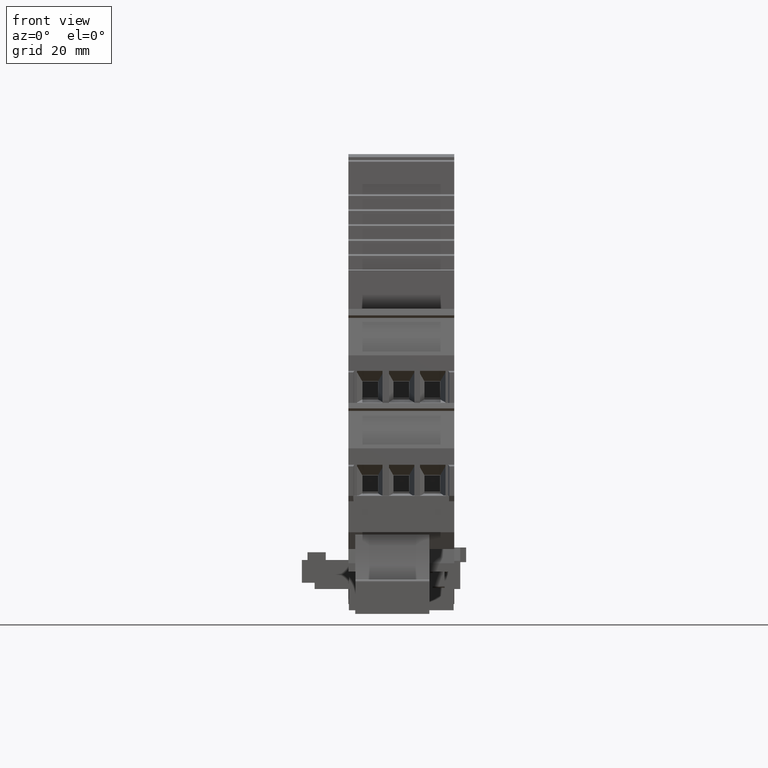
[diagram: clean part render]
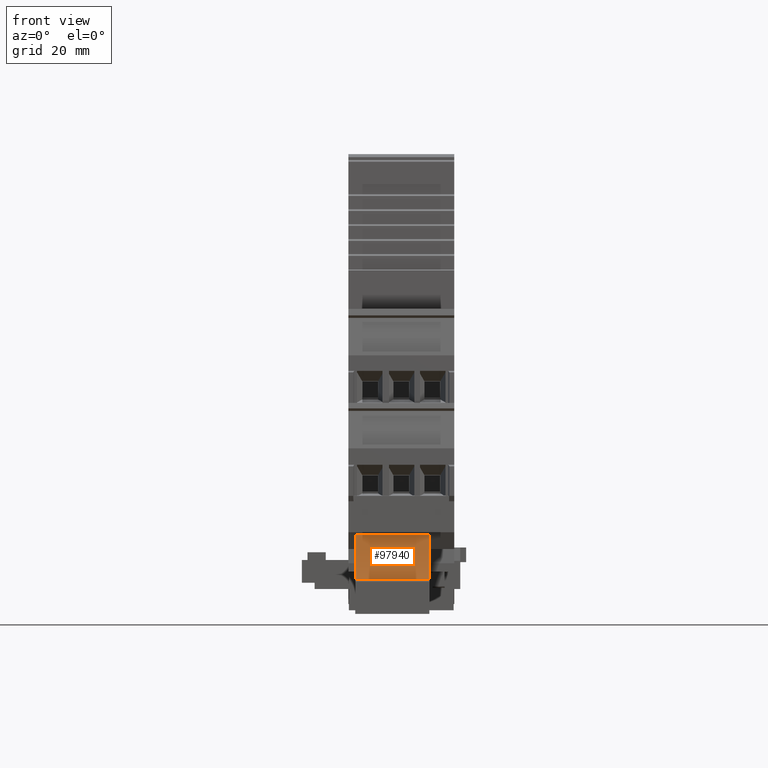
[diagram: same view with one face highlighted and labeled with its STEP entity id]
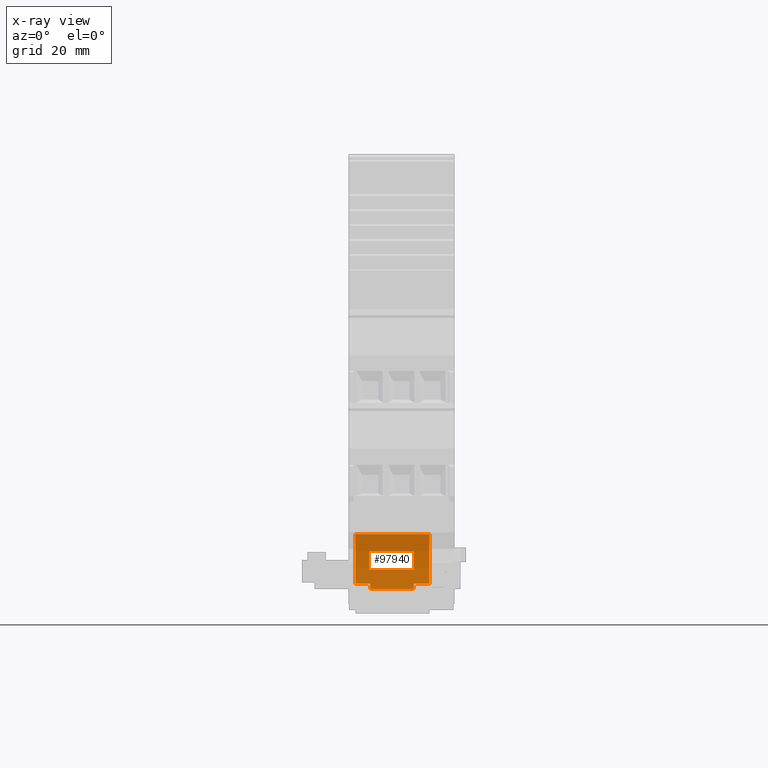
[diagram: x-ray of the same camera — body ghosted, the highlighted face saturated]
A machine part, front view. The second image highlights one B-rep face of the part: STEP entity #97940.
The next image is the same camera in x-ray: the body ghosted, the highlighted face saturated — about 0% of this face is hidden behind the body in this view.
In plain terms, the highlighted cylindrical surface (partial cylindrical patch) has radius 36.4216 mm, axis along (1, 0, 0).
Its self-contained STEP definition (entity closure, byte-faithful):
#95780=CARTESIAN_POINT('',(79.7533464536203,32.5000004563257,
-18.6383414401495));
#95790=DIRECTION('',(-0.866025403784439,-0.5,5.98477384386257E-11));
#95800=DIRECTION('',(-0.5,0.866025403784439,-1.57369833720293E-11));
#95810=AXIS2_PLACEMENT_3D('',#95780,#95790,#95800);
#95820=PLANE('',#95810);
#95970=CARTESIAN_POINT('',(78.7945118903171,34.1607506376419,
-5.08834144288964));
#95980=VERTEX_POINT('',#95970);
#96010=CARTESIAN_POINT('',(42.4807811699336,36.9623254543455,
-19.2423438435019));
#96020=DIRECTION('',(1.96178160729168E-21,4.39608926050624E-11,1.));
#96030=DIRECTION('',(0.949996010420321,-0.312262037695065,
1.3727317901887E-11));
#96040=AXIS2_PLACEMENT_3D('',#96010,#96020,#96030);
#96050=CYLINDRICAL_SURFACE('',#96040,36.42164);
#96060=CARTESIAN_POINT('',(78.7945118902532,34.1607506362684,
-17.4883414452643));
#96070=CARTESIAN_POINT('',(78.7945118902585,34.1607506363828,
-16.4550081117331));
#96080=CARTESIAN_POINT('',(78.7945118902638,34.1607506364973,
-15.4216747782019));
#96090=CARTESIAN_POINT('',(78.7945118902691,34.1607506366117,
-14.3883414446707));
#96100=CARTESIAN_POINT('',(78.7945118902745,34.1607506367262,
-13.3550081111395));
#96110=CARTESIAN_POINT('',(78.7945118902798,34.1607506368407,
-12.3216747776082));
#96120=CARTESIAN_POINT('',(78.7945118902851,34.1607506369551,
-11.288341444077));
#96130=CARTESIAN_POINT('',(78.7945118902905,34.1607506370696,
-10.2550081105458));
#96140=CARTESIAN_POINT('',(78.7945118902958,34.1607506371841,
-9.22167477701449));
#96150=CARTESIAN_POINT('',(78.7945118903011,34.1607506372985,
-8.18834144348332));
#96160=CARTESIAN_POINT('',(78.7945118903038,34.1607506373557,
-7.67167477671771));
#96170=CARTESIAN_POINT('',(78.7945118903064,34.160750637413,
-7.15500810995209));
#96180=CARTESIAN_POINT('',(78.7945118903091,34.1607506374702,
-6.63834144318647));
#96190=CARTESIAN_POINT('',(78.7945118903117,34.1607506375274,
-6.12167477642086));
#96200=CARTESIAN_POINT('',(78.7945118903144,34.1607506375847,
-5.60500810965523));
#96210=CARTESIAN_POINT('',(78.7945118903171,34.1607506376419,
-5.08834144288964));
#96220=B_SPLINE_CURVE_WITH_KNOTS('',3,(#96060,#96070,#96080,#96090,
#96100,#96110,#96120,#96130,#96140,#96150,#96160,#96170,#96180,#96190,
#96200,#96210),.UNSPECIFIED.,.F.,.F.,(4,3,3,3,3,4),(0.,3.10000000059367,
6.20000000118733,9.300000001781,10.8500000020778,12.4000000023747),
.UNSPECIFIED.);
#96230=SURFACE_CURVE('',#96220,(#95820,#96050),.CURVE_3D.);
#96240=CARTESIAN_POINT('',(78.7945118902532,34.1607506362684,
-17.4883414452643));
#96250=VERTEX_POINT('',#96240);
#96260=EDGE_CURVE('',#96250,#95980,#96230,.T.);
#97370=CARTESIAN_POINT('',(77.1962249483997,25.9453465783669,
-19.2423438430176));
#97380=DIRECTION('',(1.96178160729168E-21,4.39608926050624E-11,1.));
#97390=VECTOR('',#97380,1.);
#97400=LINE('',#97370,#97390);
#97410=CARTESIAN_POINT('',(77.1962249483997,25.9453465788748,
-7.68834144431862));
#97420=VERTEX_POINT('',#97410);
#97430=CARTESIAN_POINT('',(77.1962249483997,25.9453465789891,
-5.08834144252849));
#97440=VERTEX_POINT('',#97430);
#97450=EDGE_CURVE('',#97420,#97440,#97400,.T.);
#97460=ORIENTED_EDGE('',*,*,#97450,.T.);
#97470=CARTESIAN_POINT('',(42.4807811699336,36.9623254548535,
-7.68834144479078));
#97480=DIRECTION('',(1.96178160729168E-21,4.39608926050624E-11,1.));
#97490=DIRECTION('',(0.949996010420321,-0.312262037695065,
1.3727317901887E-11));
#97500=AXIS2_PLACEMENT_3D('',#97470,#97480,#97490);
#97510=CIRCLE('',#97500,36.42164);
#97520=CARTESIAN_POINT('',(76.903005521337,25.0607990405128,
-7.68834144427938));
#97530=VERTEX_POINT('',#97520);
#97540=EDGE_CURVE('',#97530,#97420,#97510,.T.);
#97550=ORIENTED_EDGE('',*,*,#97540,.T.);
#97560=CARTESIAN_POINT('',(76.903005521337,25.0607990405128,
-7.68834144427938));
#97570=DIRECTION('',(4.28123612420054E-13,4.42080698744088E-11,1.));
#97580=VECTOR('',#97570,1.);
#97590=LINE('',#97560,#97580);
#97600=CARTESIAN_POINT('',(76.9030055213361,25.0607990401893,
-14.9883414444423));
#97610=VERTEX_POINT('',#97600);
#97620=EDGE_CURVE('',#97610,#97530,#97590,.T.);
#97630=ORIENTED_EDGE('',*,*,#97620,.T.);
#97640=CARTESIAN_POINT('',(42.4807811699336,36.9623254545325,
-14.9883414449655));
#97650=DIRECTION('',(1.96178160729168E-21,4.39608926050624E-11,1.));
#97660=DIRECTION('',(0.949996010420321,-0.312262037695065,
1.3727317901887E-11));
#97670=AXIS2_PLACEMENT_3D('',#97640,#97650,#97660);
#97680=CIRCLE('',#97670,36.42164);
#97690=CARTESIAN_POINT('',(77.1962249483997,25.9453465785539,
-14.9883414444811));
#97700=VERTEX_POINT('',#97690);
#97710=EDGE_CURVE('',#97610,#97700,#97680,.T.);
#97720=ORIENTED_EDGE('',*,*,#97710,.F.);
#97730=CARTESIAN_POINT('',(77.1962249483997,25.945346578444,
-17.4883414449032));
#97740=VERTEX_POINT('',#97730);
#97750=EDGE_CURVE('',#97740,#97700,#97400,.T.);
#97760=ORIENTED_EDGE('',*,*,#97750,.T.);
#97770=CARTESIAN_POINT('',(42.4807811699336,36.9623254544226,
-17.4883414453875));
#97780=DIRECTION('',(1.96178160729168E-21,4.39608926050624E-11,1.));
#97790=DIRECTION('',(0.949996010420321,-0.312262037695065,
1.3727317901887E-11));
#97800=AXIS2_PLACEMENT_3D('',#97770,#97780,#97790);
#97810=CIRCLE('',#97800,36.42164);
#97820=EDGE_CURVE('',#97740,#96250,#97810,.T.);
#97830=ORIENTED_EDGE('',*,*,#97820,.F.);
#97840=ORIENTED_EDGE('',*,*,#96260,.F.);
#97850=CARTESIAN_POINT('',(42.4807811699336,36.9623254549678,
-5.0883414430128));
#97860=DIRECTION('',(1.96178160729168E-21,4.39608926050624E-11,1.));
#97870=DIRECTION('',(0.949996010420321,-0.312262037695065,
1.3727317901887E-11));
#97880=AXIS2_PLACEMENT_3D('',#97850,#97860,#97870);
#97890=CIRCLE('',#97880,36.42164);
#97900=EDGE_CURVE('',#97440,#95980,#97890,.T.);
#97910=ORIENTED_EDGE('',*,*,#97900,.T.);
#97920=EDGE_LOOP('',(#97910,#97840,#97830,#97760,#97720,#97630,#97550,
#97460));
#97930=FACE_OUTER_BOUND('',#97920,.T.);
#97940=ADVANCED_FACE('',(#97930),#96050,.F.);